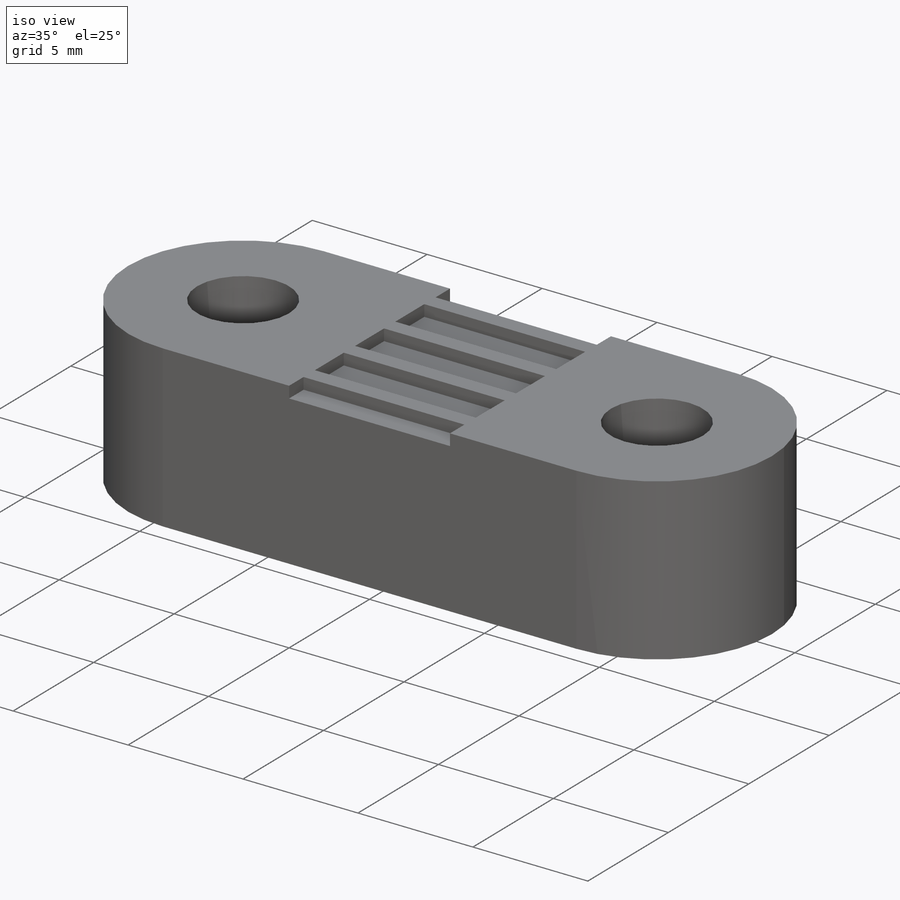
[diagram: iso view]
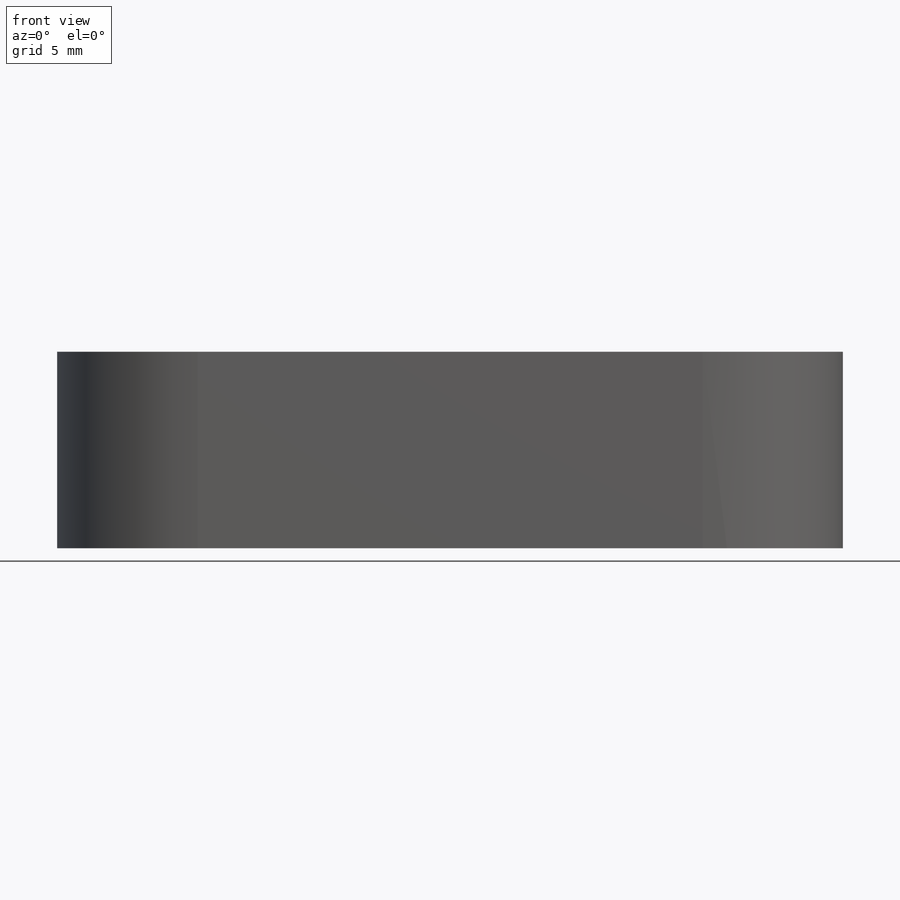
[diagram: front view]
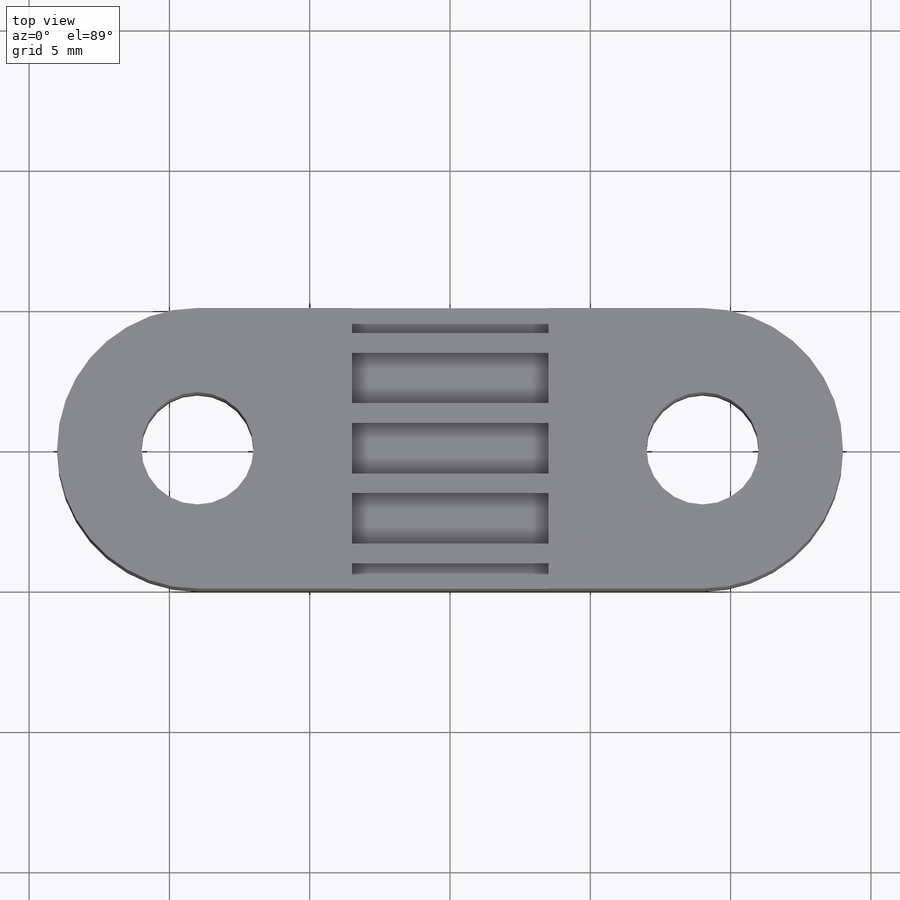
[diagram: top view]
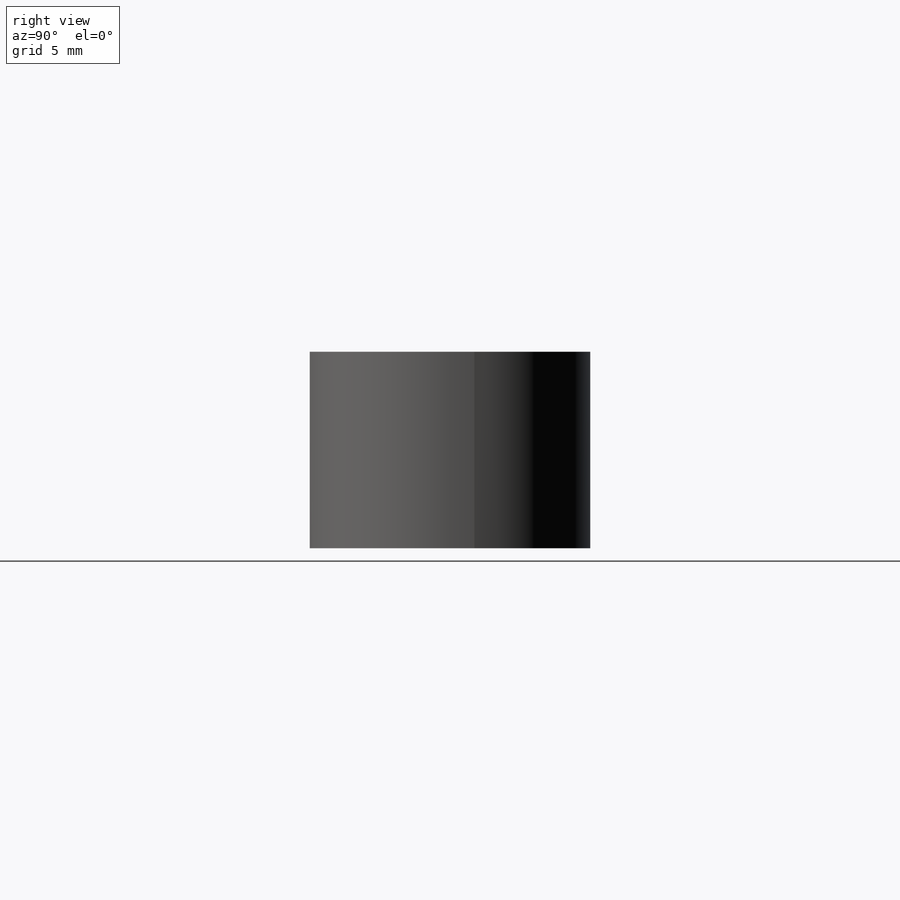
[diagram: right view]
SOLIDWORKS PART (.sldprt)
format: sldprt  version: not decoded by parser v0  size: 179,712 bytes
history: native  units: mm
features: sketch x2, material x1, extrude x1, cut_extrude x1, pattern_linear x1 (+11 scaffold rows collapsed)
feature tree (17):
  scaffold x11  (default folders/planes/origin — collapsed)
  material  "Material <not specified>"
  sketch  "Sketch1"  dims[D1=4.0mm D2=10.0mm D3=9.0mm]
  extrude  "Boss-Extrude1"  Depth=7mm
  sketch  "Sketch2"  dims[c1.D1=7.0mm c1.D2=1.8mm c1.D3=2.5mm c1.D4=2.5mm c2.D3=2.5mm c2.D4=2.5mm c2.D1=1.8mm c2.D2=7.0mm]
  cut_extrude  "Cut-Extrude1"  Depth=0.5mm
  pattern_linear  "LPattern1"  Count1=3 Count2=3 Spacing1=2.5mm Spacing2=2.5mm
decode coverage: 5 of 5 modeling features carry decoded parameters
note: suppression state not decoded; provenance and decode notes live in map.json
